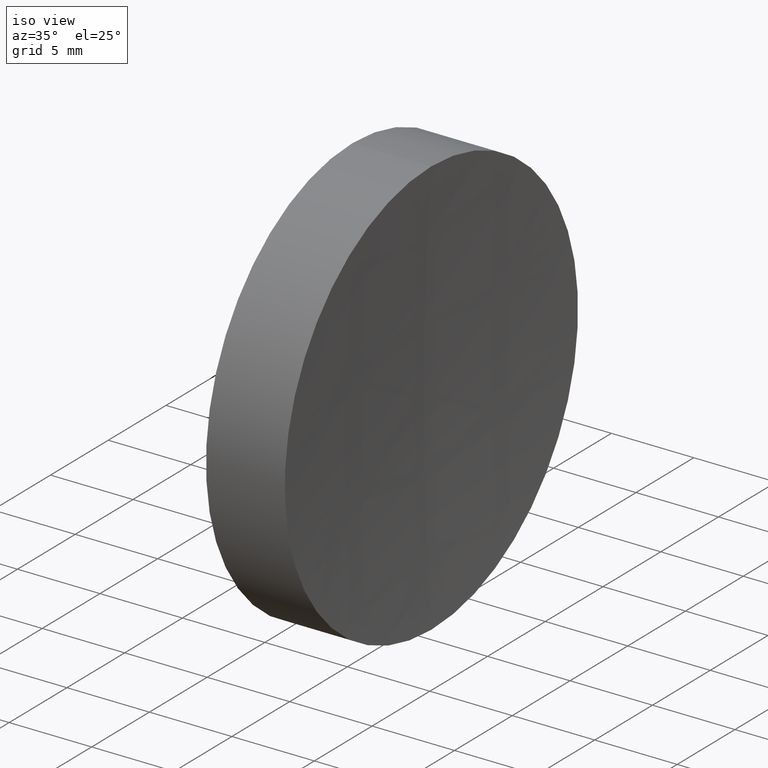
[diagram: clean part render]
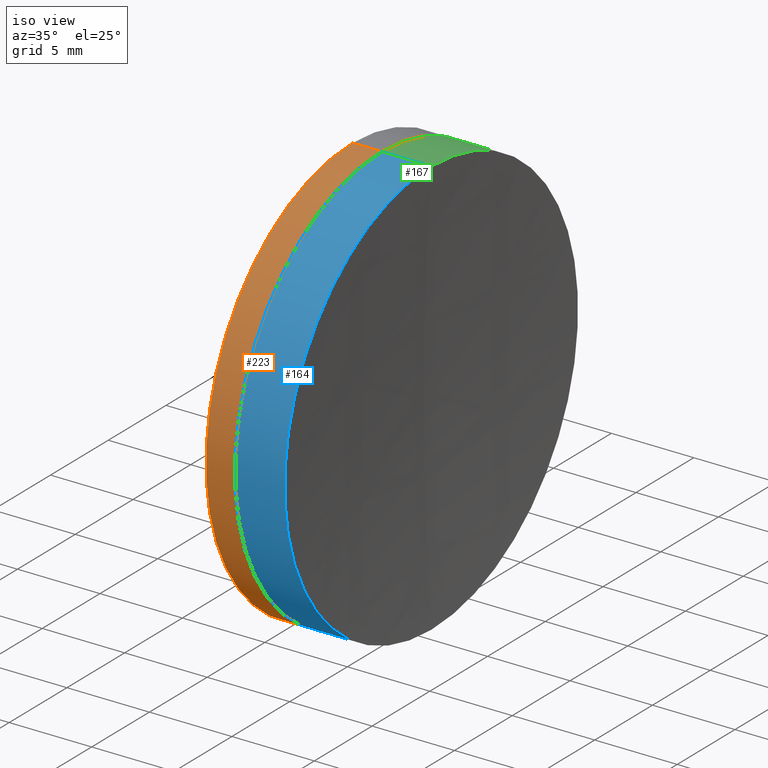
[diagram: same view with three faces highlighted in distinct colors, each labeled with its STEP entity id]
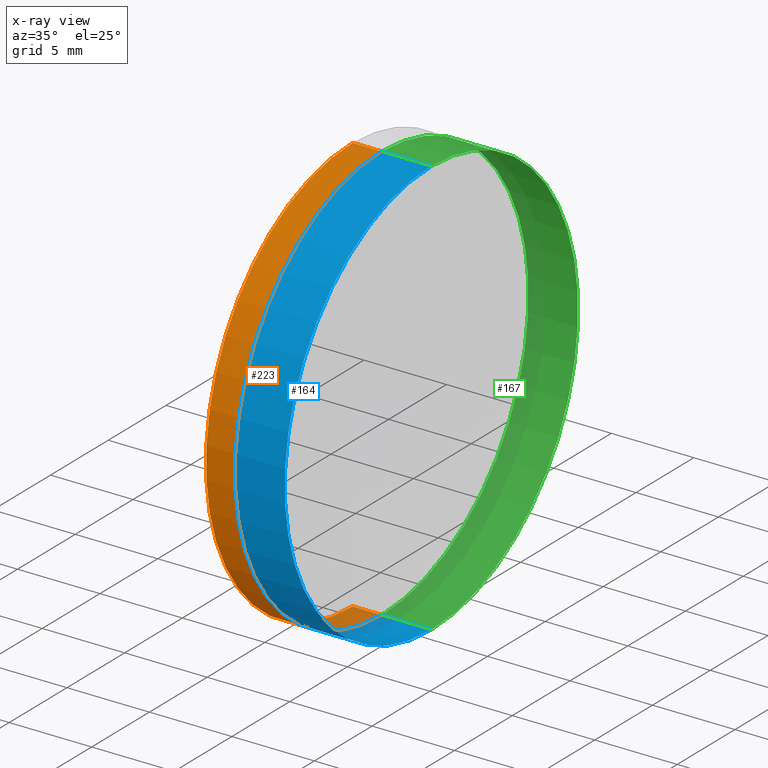
[diagram: x-ray of the same camera — body ghosted, the three highlighted faces saturated]
A machine part, iso view with three faces highlighted in distinct colors.
The next image is the same camera in x-ray (body ghosted, the three faces saturated) — at least one of them is partly hidden behind the body in this view.
Their STEP definitions:

[orange] entity #223 — the highlighted cylindrical surface (partial cylindrical patch) has radius 12.7 mm, axis along (-1, -0, -0).
#6 = CIRCLE ( 'NONE', #49, 12.69999999999971900 ) ;
#8 = CARTESIAN_POINT ( 'NONE',  ( 124.5233095260452400, 0.0000000000000000000, 12.69999999999971900 ) ) ;
#10 = EDGE_CURVE ( 'NONE', #26, #231, #109, .T. ) ;
#16 = VERTEX_POINT ( 'NONE', #72 ) ;
#21 = DIRECTION ( 'NONE',  ( -1.000000000000000000, -0.0000000000000000000, -0.0000000000000000000 ) ) ;
#26 = VERTEX_POINT ( 'NONE', #304 ) ;
#38 = ORIENTED_EDGE ( 'NONE', *, *, #243, .F. ) ;
#46 = LINE ( 'NONE', #323, #290 ) ;
#47 = CARTESIAN_POINT ( 'NONE',  ( 368.5899110541722100, 1.555301434917104100E-015, -12.69999999999971900 ) ) ;
#49 = AXIS2_PLACEMENT_3D ( 'NONE', #161, #163, #172 ) ;
#72 = CARTESIAN_POINT ( 'NONE',  ( 366.8207835879254600, 1.555301434917101200E-015, -12.69999999999997600 ) ) ;
#80 = CIRCLE ( 'NONE', #324, 12.69999999999971900 ) ;
#83 = EDGE_LOOP ( 'NONE', ( #234, #347, #198, #38 ) ) ;
#108 = DIRECTION ( 'NONE',  ( 0.0000000000000000000, 0.0000000000000000000, 1.000000000000000000 ) ) ;
#109 = LINE ( 'NONE', #8, #330 ) ;
#123 = EDGE_CURVE ( 'NONE', #277, #16, #46, .T. ) ;
#138 = CYLINDRICAL_SURFACE ( 'NONE', #197, 12.69999999999971900 ) ;
#160 = DIRECTION ( 'NONE',  ( -1.000000000000000000, -0.0000000000000000000, -0.0000000000000000000 ) ) ;
#161 = CARTESIAN_POINT ( 'NONE',  ( 368.5899110541722100, 0.0000000000000000000, 0.0000000000000000000 ) ) ;
#163 = DIRECTION ( 'NONE',  ( -1.000000000000000000, -0.0000000000000000000, -0.0000000000000000000 ) ) ;
#169 = DIRECTION ( 'NONE',  ( -1.000000000000000000, -0.0000000000000000000, -0.0000000000000000000 ) ) ;
#172 = DIRECTION ( 'NONE',  ( 0.0000000000000000000, 0.0000000000000000000, 1.000000000000000000 ) ) ;
#197 = AXIS2_PLACEMENT_3D ( 'NONE', #295, #270, #108 ) ;
#198 = ORIENTED_EDGE ( 'NONE', *, *, #10, .T. ) ;
#223 = ADVANCED_FACE ( 'NONE', ( #306 ), #138, .T. ) ;
#231 = VERTEX_POINT ( 'NONE', #246 ) ;
#234 = ORIENTED_EDGE ( 'NONE', *, *, #123, .F. ) ;
#241 = DIRECTION ( 'NONE',  ( 0.0000000000000000000, 0.0000000000000000000, 1.000000000000000000 ) ) ;
#243 = EDGE_CURVE ( 'NONE', #16, #231, #80, .T. ) ;
#246 = CARTESIAN_POINT ( 'NONE',  ( 366.8207835879254600, 0.0000000000000000000, 12.69999999999969600 ) ) ;
#262 = CARTESIAN_POINT ( 'NONE',  ( 366.8207835879254600, 0.0000000000000000000, 0.0000000000000000000 ) ) ;
#270 = DIRECTION ( 'NONE',  ( -1.000000000000000000, -0.0000000000000000000, -0.0000000000000000000 ) ) ;
#277 = VERTEX_POINT ( 'NONE', #47 ) ;
#290 = VECTOR ( 'NONE', #160, 1000.000000000000000 ) ;
#295 = CARTESIAN_POINT ( 'NONE',  ( 124.5233095260452400, 0.0000000000000000000, 0.0000000000000000000 ) ) ;
#304 = CARTESIAN_POINT ( 'NONE',  ( 368.5899110541722100, 0.0000000000000000000, 12.69999999999971900 ) ) ;
#306 = FACE_OUTER_BOUND ( 'NONE', #83, .T. ) ;
#323 = CARTESIAN_POINT ( 'NONE',  ( 124.5233095260452400, 1.555301434917104100E-015, -12.69999999999971900 ) ) ;
#324 = AXIS2_PLACEMENT_3D ( 'NONE', #262, #21, #241 ) ;
#330 = VECTOR ( 'NONE', #169, 1000.000000000000000 ) ;
#335 = EDGE_CURVE ( 'NONE', #277, #26, #6, .T. ) ;
#347 = ORIENTED_EDGE ( 'NONE', *, *, #335, .T. ) ;

[blue] entity #164 — the highlighted cylindrical surface (partial cylindrical patch) has radius 12.7 mm, axis along (-1, -0, -0).
#3 = CARTESIAN_POINT ( 'NONE',  ( 371.5952472455173800, 1.555301434917140400E-015, -12.70000000000001500 ) ) ;
#14 = AXIS2_PLACEMENT_3D ( 'NONE', #253, #254, #248 ) ;
#20 = CARTESIAN_POINT ( 'NONE',  ( 368.5899110541722100, 1.555301434917112200E-015, -12.70000000000006500 ) ) ;
#22 = VERTEX_POINT ( 'NONE', #3 ) ;
#25 = CARTESIAN_POINT ( 'NONE',  ( 371.5952472455173800, 0.0000000000000000000, 12.70000000000001500 ) ) ;
#41 = VECTOR ( 'NONE', #65, 1000.000000000000000 ) ;
#65 = DIRECTION ( 'NONE',  ( -1.000000000000000000, -0.0000000000000000000, -0.0000000000000000000 ) ) ;
#67 = VERTEX_POINT ( 'NONE', #25 ) ;
#81 = CARTESIAN_POINT ( 'NONE',  ( 368.5899110541722100, 0.0000000000000000000, 0.0000000000000000000 ) ) ;
#86 = EDGE_CURVE ( 'NONE', #22, #67, #186, .T. ) ;
#94 = AXIS2_PLACEMENT_3D ( 'NONE', #81, #181, #255 ) ;
#106 = EDGE_CURVE ( 'NONE', #67, #173, #178, .T. ) ;
#125 = FACE_OUTER_BOUND ( 'NONE', #311, .T. ) ;
#142 = ORIENTED_EDGE ( 'NONE', *, *, #86, .T. ) ;
#144 = CIRCLE ( 'NONE', #94, 12.69999999999979500 ) ;
#146 = EDGE_CURVE ( 'NONE', #279, #173, #144, .T. ) ;
#149 = DIRECTION ( 'NONE',  ( 0.0000000000000000000, 0.0000000000000000000, 1.000000000000000000 ) ) ;
#154 = VECTOR ( 'NONE', #260, 1000.000000000000000 ) ;
#164 = ADVANCED_FACE ( 'NONE', ( #125 ), #321, .T. ) ;
#173 = VERTEX_POINT ( 'NONE', #288 ) ;
#178 = LINE ( 'NONE', #233, #154 ) ;
#181 = DIRECTION ( 'NONE',  ( -1.000000000000000000, -0.0000000000000000000, -0.0000000000000000000 ) ) ;
#186 = CIRCLE ( 'NONE', #14, 12.70000000000001500 ) ;
#216 = ORIENTED_EDGE ( 'NONE', *, *, #146, .F. ) ;
#226 = LINE ( 'NONE', #259, #41 ) ;
#230 = CARTESIAN_POINT ( 'NONE',  ( -0.5519199926577972300, 0.0000000000000000000, 0.0000000000000000000 ) ) ;
#233 = CARTESIAN_POINT ( 'NONE',  ( -0.5519199926577972300, 0.0000000000000000000, 12.69999999999990500 ) ) ;
#248 = DIRECTION ( 'NONE',  ( 0.0000000000000000000, 0.0000000000000000000, 1.000000000000000000 ) ) ;
#252 = AXIS2_PLACEMENT_3D ( 'NONE', #230, #319, #149 ) ;
#253 = CARTESIAN_POINT ( 'NONE',  ( 371.5952472455173800, 0.0000000000000000000, 0.0000000000000000000 ) ) ;
#254 = DIRECTION ( 'NONE',  ( -1.000000000000000000, -0.0000000000000000000, -0.0000000000000000000 ) ) ;
#255 = DIRECTION ( 'NONE',  ( 0.0000000000000000000, 0.0000000000000000000, 1.000000000000000000 ) ) ;
#259 = CARTESIAN_POINT ( 'NONE',  ( -0.5519199926577972300, 1.555301434917127000E-015, -12.69999999999990500 ) ) ;
#260 = DIRECTION ( 'NONE',  ( -1.000000000000000000, -0.0000000000000000000, -0.0000000000000000000 ) ) ;
#269 = EDGE_CURVE ( 'NONE', #22, #279, #226, .T. ) ;
#279 = VERTEX_POINT ( 'NONE', #20 ) ;
#288 = CARTESIAN_POINT ( 'NONE',  ( 368.5899110541722100, 0.0000000000000000000, 12.69999999999978400 ) ) ;
#311 = EDGE_LOOP ( 'NONE', ( #338, #142, #328, #216 ) ) ;
#319 = DIRECTION ( 'NONE',  ( -1.000000000000000000, -0.0000000000000000000, -0.0000000000000000000 ) ) ;
#321 = CYLINDRICAL_SURFACE ( 'NONE', #252, 12.69999999999990500 ) ;
#328 = ORIENTED_EDGE ( 'NONE', *, *, #106, .T. ) ;
#338 = ORIENTED_EDGE ( 'NONE', *, *, #269, .F. ) ;

[green] entity #167 — the highlighted cylindrical surface (partial cylindrical patch) has radius 12.7 mm, axis along (-1, -0, -0).
#3 = CARTESIAN_POINT ( 'NONE',  ( 371.5952472455173800, 1.555301434917140400E-015, -12.70000000000001500 ) ) ;
#9 = ORIENTED_EDGE ( 'NONE', *, *, #106, .F. ) ;
#20 = CARTESIAN_POINT ( 'NONE',  ( 368.5899110541722100, 1.555301434917112200E-015, -12.70000000000006500 ) ) ;
#22 = VERTEX_POINT ( 'NONE', #3 ) ;
#24 = CIRCLE ( 'NONE', #308, 12.69999999999979500 ) ;
#25 = CARTESIAN_POINT ( 'NONE',  ( 371.5952472455173800, 0.0000000000000000000, 12.70000000000001500 ) ) ;
#41 = VECTOR ( 'NONE', #65, 1000.000000000000000 ) ;
#65 = DIRECTION ( 'NONE',  ( -1.000000000000000000, -0.0000000000000000000, -0.0000000000000000000 ) ) ;
#67 = VERTEX_POINT ( 'NONE', #25 ) ;
#106 = EDGE_CURVE ( 'NONE', #67, #173, #178, .T. ) ;
#113 = EDGE_CURVE ( 'NONE', #67, #22, #310, .T. ) ;
#154 = VECTOR ( 'NONE', #260, 1000.000000000000000 ) ;
#167 = ADVANCED_FACE ( 'NONE', ( #274 ), #193, .T. ) ;
#173 = VERTEX_POINT ( 'NONE', #288 ) ;
#178 = LINE ( 'NONE', #233, #154 ) ;
#193 = CYLINDRICAL_SURFACE ( 'NONE', #289, 12.69999999999990500 ) ;
#196 = ORIENTED_EDGE ( 'NONE', *, *, #113, .T. ) ;
#200 = DIRECTION ( 'NONE',  ( 0.0000000000000000000, 0.0000000000000000000, 1.000000000000000000 ) ) ;
#201 = ORIENTED_EDGE ( 'NONE', *, *, #269, .T. ) ;
#213 = EDGE_CURVE ( 'NONE', #173, #279, #24, .T. ) ;
#226 = LINE ( 'NONE', #259, #41 ) ;
#233 = CARTESIAN_POINT ( 'NONE',  ( -0.5519199926577972300, 0.0000000000000000000, 12.69999999999990500 ) ) ;
#251 = CARTESIAN_POINT ( 'NONE',  ( 368.5899110541722100, 0.0000000000000000000, 0.0000000000000000000 ) ) ;
#257 = EDGE_LOOP ( 'NONE', ( #196, #201, #313, #9 ) ) ;
#259 = CARTESIAN_POINT ( 'NONE',  ( -0.5519199926577972300, 1.555301434917127000E-015, -12.69999999999990500 ) ) ;
#260 = DIRECTION ( 'NONE',  ( -1.000000000000000000, -0.0000000000000000000, -0.0000000000000000000 ) ) ;
#266 = DIRECTION ( 'NONE',  ( 0.0000000000000000000, 0.0000000000000000000, 1.000000000000000000 ) ) ;
#269 = EDGE_CURVE ( 'NONE', #22, #279, #226, .T. ) ;
#274 = FACE_OUTER_BOUND ( 'NONE', #257, .T. ) ;
#279 = VERTEX_POINT ( 'NONE', #20 ) ;
#285 = DIRECTION ( 'NONE',  ( -1.000000000000000000, -0.0000000000000000000, -0.0000000000000000000 ) ) ;
#287 = DIRECTION ( 'NONE',  ( -1.000000000000000000, -0.0000000000000000000, -0.0000000000000000000 ) ) ;
#288 = CARTESIAN_POINT ( 'NONE',  ( 368.5899110541722100, 0.0000000000000000000, 12.69999999999978400 ) ) ;
#289 = AXIS2_PLACEMENT_3D ( 'NONE', #329, #285, #200 ) ;
#293 = AXIS2_PLACEMENT_3D ( 'NONE', #303, #316, #315 ) ;
#303 = CARTESIAN_POINT ( 'NONE',  ( 371.5952472455173800, 0.0000000000000000000, 0.0000000000000000000 ) ) ;
#308 = AXIS2_PLACEMENT_3D ( 'NONE', #251, #287, #266 ) ;
#310 = CIRCLE ( 'NONE', #293, 12.70000000000001500 ) ;
#313 = ORIENTED_EDGE ( 'NONE', *, *, #213, .F. ) ;
#315 = DIRECTION ( 'NONE',  ( 0.0000000000000000000, 0.0000000000000000000, 1.000000000000000000 ) ) ;
#316 = DIRECTION ( 'NONE',  ( -1.000000000000000000, -0.0000000000000000000, -0.0000000000000000000 ) ) ;
#329 = CARTESIAN_POINT ( 'NONE',  ( -0.5519199926577972300, 0.0000000000000000000, 0.0000000000000000000 ) ) ;